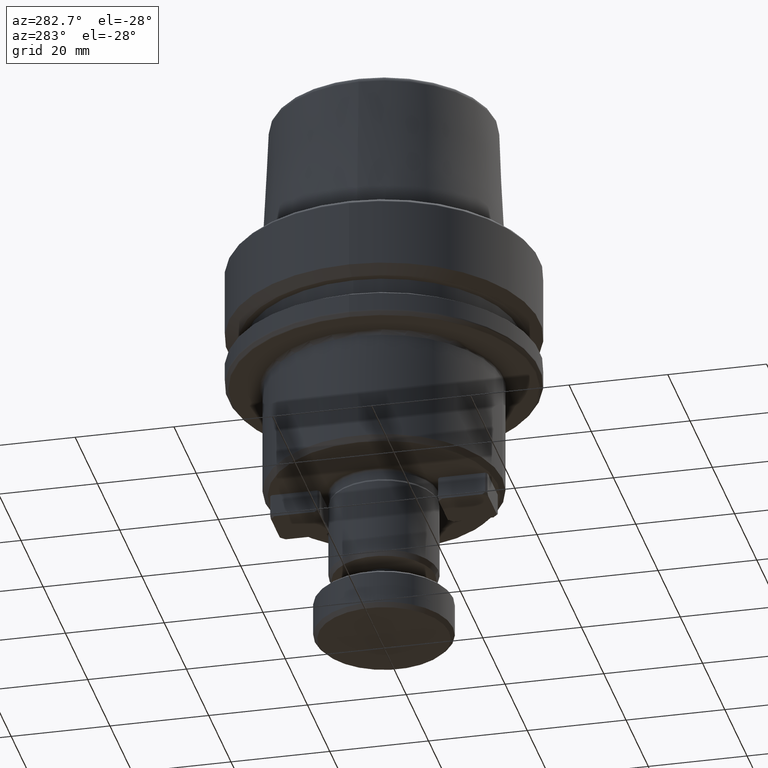
[diagram: clean part render]
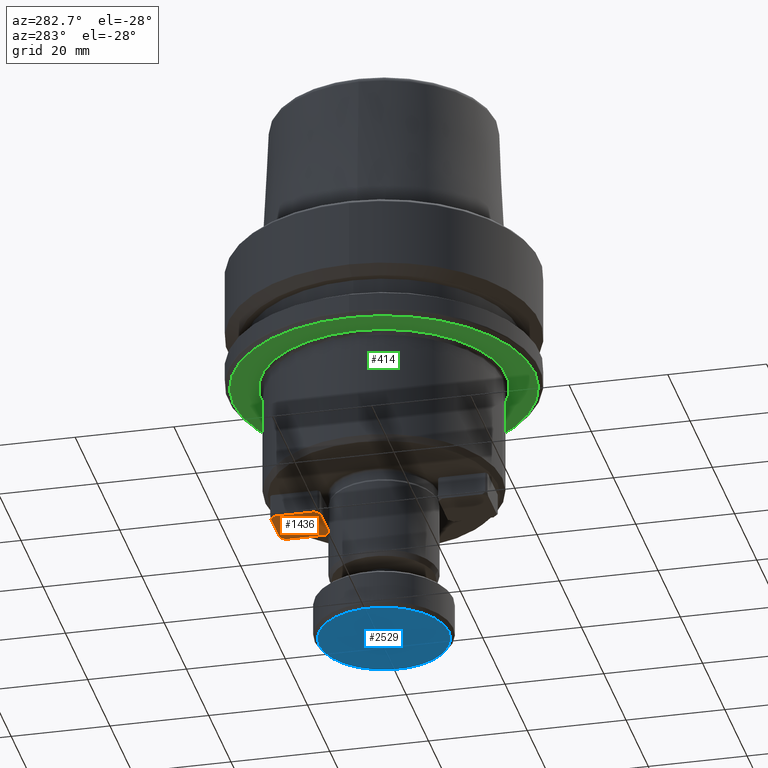
[diagram: same view with three faces highlighted in distinct colors, each labeled with its STEP entity id]
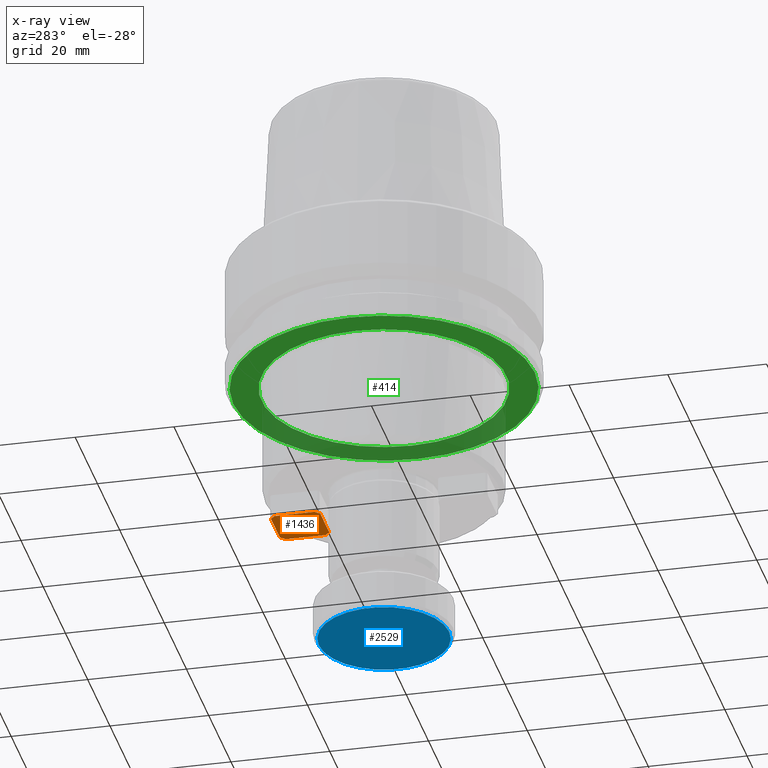
[diagram: x-ray of the same camera — body ghosted, the three highlighted faces saturated]
A machine part, auxiliary view with three faces highlighted in distinct colors.
The next image is the same camera in x-ray (body ghosted, the three faces saturated) — at least one of them is partly hidden behind the body in this view.
Their STEP definitions:

[orange] entity #1436 — the highlighted planar face has unit normal (0, 0, -1).
#76 = VERTEX_POINT ( 'NONE', #2551 ) ;
#131 = CARTESIAN_POINT ( 'NONE',  ( 4.999999999999999100, 21.03431457505078600, -54.75000000000000700 ) ) ;
#164 = VECTOR ( 'NONE', #1606, 1000.000000000000000 ) ;
#212 = ORIENTED_EDGE ( 'NONE', *, *, #1091, .T. ) ;
#224 = DIRECTION ( 'NONE',  ( 1.885568995626965000E-016, -1.000000000000000000, 7.542275982507860100E-016 ) ) ;
#283 = ORIENTED_EDGE ( 'NONE', *, *, #845, .T. ) ;
#319 = CARTESIAN_POINT ( 'NONE',  ( 4.034314575050772500, 12.00000000000000000, -54.75000000000000000 ) ) ;
#326 = LINE ( 'NONE', #2689, #2572 ) ;
#429 = PLANE ( 'NONE',  #1211 ) ;
#439 = LINE ( 'NONE', #1271, #2072 ) ;
#504 = DIRECTION ( 'NONE',  ( -1.000000000000000000, 0.0000000000000000000, 0.0000000000000000000 ) ) ;
#521 = EDGE_CURVE ( 'NONE', #2413, #76, #1907, .T. ) ;
#587 = DIRECTION ( 'NONE',  ( -0.7071067811865483500, -0.7071067811865468000, 0.0000000000000000000 ) ) ;
#654 = CARTESIAN_POINT ( 'NONE',  ( 5.000000000000000900, 12.96568542494921100, -54.74999999999999300 ) ) ;
#720 = EDGE_CURVE ( 'NONE', #2523, #1854, #2370, .T. ) ;
#742 = DIRECTION ( 'NONE',  ( 0.7071067811865474600, 0.7071067811865474600, 0.0000000000000000000 ) ) ;
#761 = CARTESIAN_POINT ( 'NONE',  ( -4.999999999999999100, 21.03431457505078600, -54.75000000000000700 ) ) ;
#817 = VERTEX_POINT ( 'NONE', #2726 ) ;
#845 = EDGE_CURVE ( 'NONE', #1854, #1734, #2678, .T. ) ;
#906 = CARTESIAN_POINT ( 'NONE',  ( 4.600000000000000500, 12.00000000000000000, -54.75000000000000000 ) ) ;
#965 = ORIENTED_EDGE ( 'NONE', *, *, #521, .T. ) ;
#1020 = LINE ( 'NONE', #1652, #2165 ) ;
#1067 = EDGE_CURVE ( 'NONE', #1327, #1288, #1741, .T. ) ;
#1091 = EDGE_CURVE ( 'NONE', #1288, #2413, #326, .T. ) ;
#1116 = DIRECTION ( 'NONE',  ( 0.7071067811865474600, -0.7071067811865474600, 0.0000000000000000000 ) ) ;
#1149 = VECTOR ( 'NONE', #1222, 1000.000000000000000 ) ;
#1211 = AXIS2_PLACEMENT_3D ( 'NONE', #1655, #1421, #1938 ) ;
#1222 = DIRECTION ( 'NONE',  ( 9.427844978134825100E-017, 1.000000000000000000, -7.542275982507860100E-016 ) ) ;
#1271 = CARTESIAN_POINT ( 'NONE',  ( 4.717157287525399300, 21.31715728752539700, -54.75000000000000000 ) ) ;
#1288 = VERTEX_POINT ( 'NONE', #654 ) ;
#1327 = VERTEX_POINT ( 'NONE', #131 ) ;
#1338 = VECTOR ( 'NONE', #504, 1000.000000000000000 ) ;
#1421 = DIRECTION ( 'NONE',  ( 0.0000000000000000000, 0.0000000000000000000, -1.000000000000000000 ) ) ;
#1436 = ADVANCED_FACE ( 'NONE', ( #1503 ), #429, .T. ) ;
#1468 = VECTOR ( 'NONE', #224, 1000.000000000000000 ) ;
#1503 = FACE_OUTER_BOUND ( 'NONE', #2660, .T. ) ;
#1549 = CARTESIAN_POINT ( 'NONE',  ( 4.599999999999997900, 22.00000000000000000, -54.75000000000000700 ) ) ;
#1606 = DIRECTION ( 'NONE',  ( 1.000000000000000000, -0.0000000000000000000, -0.0000000000000000000 ) ) ;
#1652 = CARTESIAN_POINT ( 'NONE',  ( -4.717157287525387800, 12.68284271247461300, -54.75000000000000000 ) ) ;
#1655 = CARTESIAN_POINT ( 'NONE',  ( 0.0000000000000000000, -8.887193785479059500E-016, -54.75000000000000000 ) ) ;
#1671 = CARTESIAN_POINT ( 'NONE',  ( -5.000000000000000000, 21.59999999999999800, -54.75000000000000700 ) ) ;
#1696 = CARTESIAN_POINT ( 'NONE',  ( -4.034314575050790300, 22.00000000000000000, -54.75000000000000700 ) ) ;
#1734 = VERTEX_POINT ( 'NONE', #1696 ) ;
#1741 = LINE ( 'NONE', #1926, #1468 ) ;
#1784 = EDGE_CURVE ( 'NONE', #817, #1327, #439, .T. ) ;
#1811 = ORIENTED_EDGE ( 'NONE', *, *, #720, .T. ) ;
#1854 = VERTEX_POINT ( 'NONE', #761 ) ;
#1880 = EDGE_CURVE ( 'NONE', #1734, #817, #2393, .T. ) ;
#1907 = LINE ( 'NONE', #906, #1338 ) ;
#1912 = ORIENTED_EDGE ( 'NONE', *, *, #1880, .T. ) ;
#1926 = CARTESIAN_POINT ( 'NONE',  ( 4.999999999999999100, 21.59999999999999800, -54.75000000000000700 ) ) ;
#1938 = DIRECTION ( 'NONE',  ( -1.000000000000000000, 0.0000000000000000000, -0.0000000000000000000 ) ) ;
#2072 = VECTOR ( 'NONE', #1116, 1000.000000000000100 ) ;
#2165 = VECTOR ( 'NONE', #2521, 1000.000000000000000 ) ;
#2210 = ORIENTED_EDGE ( 'NONE', *, *, #1067, .T. ) ;
#2214 = ORIENTED_EDGE ( 'NONE', *, *, #2509, .T. ) ;
#2370 = LINE ( 'NONE', #1671, #1149 ) ;
#2393 = LINE ( 'NONE', #1549, #164 ) ;
#2413 = VERTEX_POINT ( 'NONE', #319 ) ;
#2473 = CARTESIAN_POINT ( 'NONE',  ( -4.317157287525399000, 21.71715728752539600, -54.75000000000000000 ) ) ;
#2484 = ORIENTED_EDGE ( 'NONE', *, *, #1784, .T. ) ;
#2509 = EDGE_CURVE ( 'NONE', #76, #2523, #1020, .T. ) ;
#2521 = DIRECTION ( 'NONE',  ( -0.7071067811865483500, 0.7071067811865468000, 0.0000000000000000000 ) ) ;
#2523 = VERTEX_POINT ( 'NONE', #2562 ) ;
#2533 = VECTOR ( 'NONE', #742, 1000.000000000000100 ) ;
#2551 = CARTESIAN_POINT ( 'NONE',  ( -4.034314575050772500, 12.00000000000000000, -54.75000000000000000 ) ) ;
#2562 = CARTESIAN_POINT ( 'NONE',  ( -5.000000000000000900, 12.96568542494923000, -54.75000000000000000 ) ) ;
#2572 = VECTOR ( 'NONE', #587, 1000.000000000000000 ) ;
#2660 = EDGE_LOOP ( 'NONE', ( #965, #2214, #1811, #283, #1912, #2484, #2210, #212 ) ) ;
#2678 = LINE ( 'NONE', #2473, #2533 ) ;
#2689 = CARTESIAN_POINT ( 'NONE',  ( 4.317157287525386500, 12.28284271247461500, -54.75000000000000000 ) ) ;
#2726 = CARTESIAN_POINT ( 'NONE',  ( 4.034314575050788500, 22.00000000000000000, -54.75000000000000700 ) ) ;

[blue] entity #2529 — the highlighted planar face has unit normal (0, -0, 1).
#39 = EDGE_LOOP ( 'NONE', ( #690, #1108 ) ) ;
#262 = CARTESIAN_POINT ( 'NONE',  ( 0.0000000000000000000, -9.813858592407305600E-016, -81.99999999999998600 ) ) ;
#621 = CARTESIAN_POINT ( 'NONE',  ( 0.0000000000000000000, -9.813858592407305600E-016, -81.99999999999998600 ) ) ;
#655 = AXIS2_PLACEMENT_3D ( 'NONE', #621, #2567, #1914 ) ;
#690 = ORIENTED_EDGE ( 'NONE', *, *, #2215, .F. ) ;
#1037 = VERTEX_POINT ( 'NONE', #2655 ) ;
#1084 = VERTEX_POINT ( 'NONE', #1568 ) ;
#1108 = ORIENTED_EDGE ( 'NONE', *, *, #1849, .F. ) ;
#1183 = AXIS2_PLACEMENT_3D ( 'NONE', #262, #2654, #2228 ) ;
#1568 = CARTESIAN_POINT ( 'NONE',  ( 0.0000000000000000000, -13.20000000000000100, -81.99999999999998600 ) ) ;
#1625 = CIRCLE ( 'NONE', #655, 13.19999999999999900 ) ;
#1849 = EDGE_CURVE ( 'NONE', #1037, #1084, #1934, .T. ) ;
#1914 = DIRECTION ( 'NONE',  ( 0.0000000000000000000, -1.000000000000000000, 0.0000000000000000000 ) ) ;
#1934 = CIRCLE ( 'NONE', #1183, 13.19999999999999900 ) ;
#1946 = AXIS2_PLACEMENT_3D ( 'NONE', #2440, #2354, #2317 ) ;
#2089 = FACE_OUTER_BOUND ( 'NONE', #39, .T. ) ;
#2215 = EDGE_CURVE ( 'NONE', #1084, #1037, #1625, .T. ) ;
#2228 = DIRECTION ( 'NONE',  ( 0.0000000000000000000, -1.000000000000000000, 0.0000000000000000000 ) ) ;
#2317 = DIRECTION ( 'NONE',  ( 0.0000000000000000000, -1.000000000000000000, -2.380093774209757000E-017 ) ) ;
#2354 = DIRECTION ( 'NONE',  ( 0.0000000000000000000, -2.380093774209757000E-017, 1.000000000000000000 ) ) ;
#2416 = PLANE ( 'NONE',  #1946 ) ;
#2440 = CARTESIAN_POINT ( 'NONE',  ( 0.0000000000000000000, -3.265655650049714700E-031, -81.99999999999998600 ) ) ;
#2529 = ADVANCED_FACE ( 'NONE', ( #2089 ), #2416, .F. ) ;
#2567 = DIRECTION ( 'NONE',  ( -0.0000000000000000000, -2.380093774209757000E-017, 1.000000000000000000 ) ) ;
#2654 = DIRECTION ( 'NONE',  ( -0.0000000000000000000, -2.380093774209757000E-017, 1.000000000000000000 ) ) ;
#2655 = CARTESIAN_POINT ( 'NONE',  ( 1.665519646840400200E-015, 13.19999999999999800, -81.99999999999998600 ) ) ;

[green] entity #414 — the highlighted planar face has unit normal (0, -0, 1).
#92 = DIRECTION ( 'NONE',  ( -0.0000000000000000000, -0.0000000000000000000, 1.000000000000000000 ) ) ;
#113 = ORIENTED_EDGE ( 'NONE', *, *, #784, .F. ) ;
#163 = ORIENTED_EDGE ( 'NONE', *, *, #925, .F. ) ;
#170 = CIRCLE ( 'NONE', #1175, 30.53431457505076500 ) ;
#171 = EDGE_CURVE ( 'NONE', #1689, #1423, #551, .T. ) ;
#246 = AXIS2_PLACEMENT_3D ( 'NONE', #1620, #2505, #984 ) ;
#306 = DIRECTION ( 'NONE',  ( 1.000000000000000000, 0.0000000000000000000, 0.0000000000000000000 ) ) ;
#381 = FACE_OUTER_BOUND ( 'NONE', #2111, .T. ) ;
#414 = ADVANCED_FACE ( 'NONE', ( #951, #381 ), #1206, .F. ) ;
#450 = CARTESIAN_POINT ( 'NONE',  ( 0.0000000000000000000, 1.594888854703520600E-017, -26.00000000000000700 ) ) ;
#466 = ORIENTED_EDGE ( 'NONE', *, *, #171, .T. ) ;
#551 = CIRCLE ( 'NONE', #1491, 24.80000000000000100 ) ;
#592 = VERTEX_POINT ( 'NONE', #2415 ) ;
#664 = AXIS2_PLACEMENT_3D ( 'NONE', #692, #1286, #306 ) ;
#692 = CARTESIAN_POINT ( 'NONE',  ( 0.0000000000000000000, 1.594888854703520600E-017, -26.00000000000000700 ) ) ;
#784 = EDGE_CURVE ( 'NONE', #592, #1190, #2759, .T. ) ;
#838 = EDGE_LOOP ( 'NONE', ( #466, #1320 ) ) ;
#925 = EDGE_CURVE ( 'NONE', #1190, #592, #170, .T. ) ;
#951 = FACE_BOUND ( 'NONE', #838, .T. ) ;
#984 = DIRECTION ( 'NONE',  ( 1.000000000000000000, 0.0000000000000000000, 0.0000000000000000000 ) ) ;
#990 = DIRECTION ( 'NONE',  ( -0.0000000000000000000, -0.0000000000000000000, 1.000000000000000000 ) ) ;
#1155 = CIRCLE ( 'NONE', #664, 24.80000000000000100 ) ;
#1175 = AXIS2_PLACEMENT_3D ( 'NONE', #2452, #1724, #2628 ) ;
#1176 = CARTESIAN_POINT ( 'NONE',  ( 30.53431457505076500, 0.0000000000000000000, -26.00000000000001100 ) ) ;
#1190 = VERTEX_POINT ( 'NONE', #1176 ) ;
#1206 = PLANE ( 'NONE',  #246 ) ;
#1286 = DIRECTION ( 'NONE',  ( -0.0000000000000000000, -0.0000000000000000000, 1.000000000000000000 ) ) ;
#1320 = ORIENTED_EDGE ( 'NONE', *, *, #2447, .T. ) ;
#1423 = VERTEX_POINT ( 'NONE', #2278 ) ;
#1491 = AXIS2_PLACEMENT_3D ( 'NONE', #450, #92, #1558 ) ;
#1558 = DIRECTION ( 'NONE',  ( 1.000000000000000000, 0.0000000000000000000, 0.0000000000000000000 ) ) ;
#1620 = CARTESIAN_POINT ( 'NONE',  ( 0.0000000000000000000, 30.53431457505076500, -26.00000000000000700 ) ) ;
#1689 = VERTEX_POINT ( 'NONE', #2499 ) ;
#1724 = DIRECTION ( 'NONE',  ( -0.0000000000000000000, -0.0000000000000000000, 1.000000000000000000 ) ) ;
#2111 = EDGE_LOOP ( 'NONE', ( #163, #113 ) ) ;
#2278 = CARTESIAN_POINT ( 'NONE',  ( -24.80000000000000100, 3.053072950432470900E-015, -26.00000000000000700 ) ) ;
#2293 = DIRECTION ( 'NONE',  ( 1.000000000000000000, 0.0000000000000000000, 0.0000000000000000000 ) ) ;
#2399 = AXIS2_PLACEMENT_3D ( 'NONE', #2511, #990, #2293 ) ;
#2415 = CARTESIAN_POINT ( 'NONE',  ( -30.53431457505076500, 3.756694181974138600E-015, -26.00000000000001100 ) ) ;
#2447 = EDGE_CURVE ( 'NONE', #1423, #1689, #1155, .T. ) ;
#2452 = CARTESIAN_POINT ( 'NONE',  ( 0.0000000000000000000, 0.0000000000000000000, -26.00000000000001100 ) ) ;
#2499 = CARTESIAN_POINT ( 'NONE',  ( 24.80000000000000100, 1.594888854703520600E-017, -26.00000000000000700 ) ) ;
#2505 = DIRECTION ( 'NONE',  ( 0.0000000000000000000, -0.0000000000000000000, 1.000000000000000000 ) ) ;
#2511 = CARTESIAN_POINT ( 'NONE',  ( 0.0000000000000000000, 0.0000000000000000000, -26.00000000000001100 ) ) ;
#2628 = DIRECTION ( 'NONE',  ( 1.000000000000000000, 0.0000000000000000000, 0.0000000000000000000 ) ) ;
#2759 = CIRCLE ( 'NONE', #2399, 30.53431457505076500 ) ;